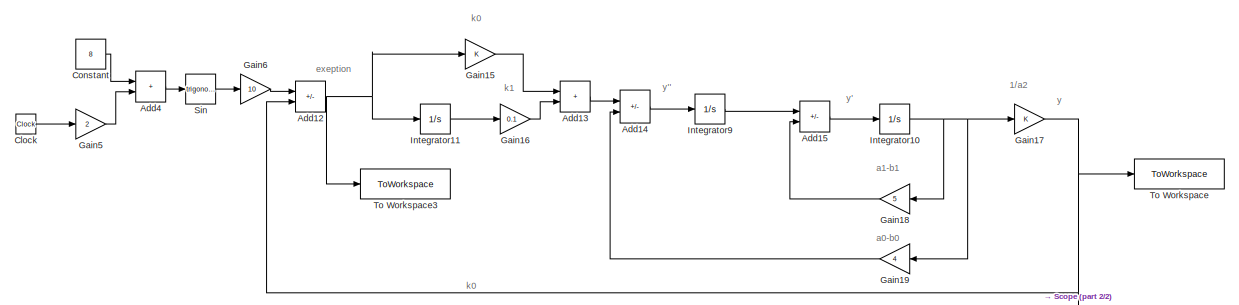
[diagram: root canvas - part 1/2, full width, top band]
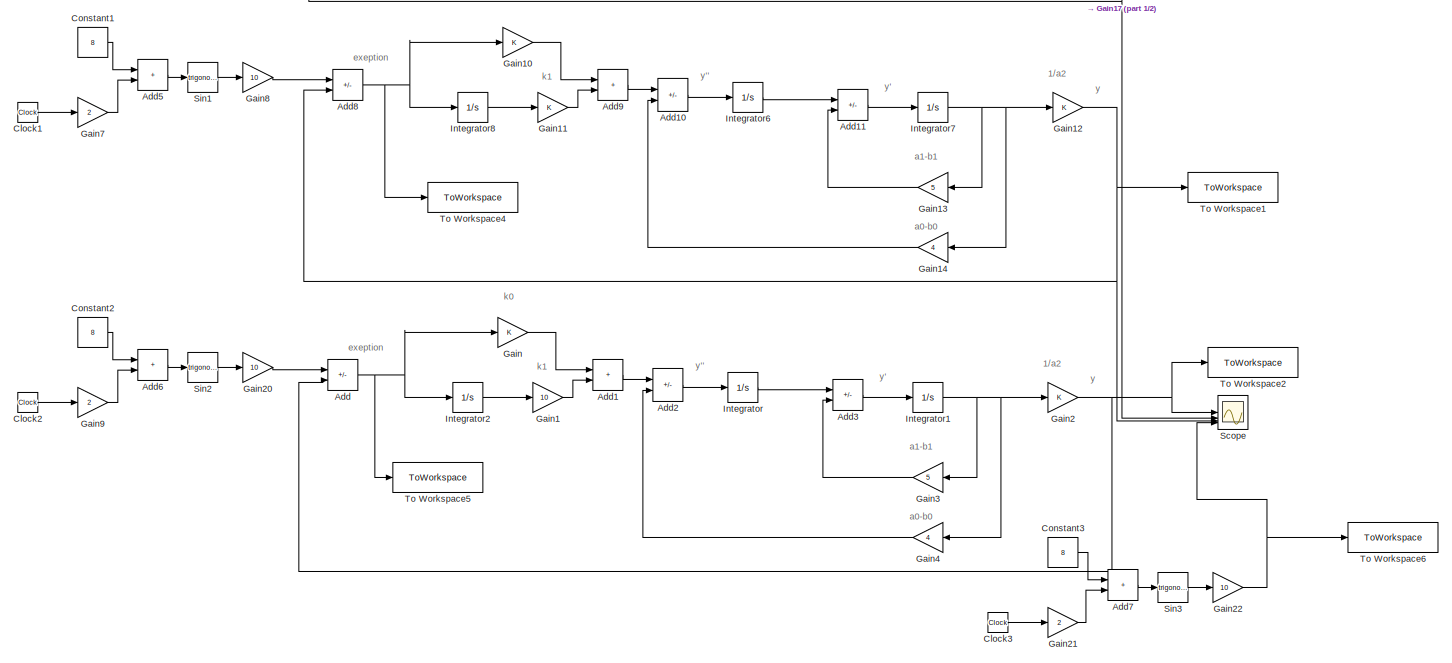
[diagram: root canvas - part 2/2, full width, middle band]
MODEL slx_61120f5c7360
KIND model
CONFIG AbsTol = auto
CONFIG EnableMultiTasking = off
CONFIG FixedStep = 0.01
CONFIG MaxStep = auto
CONFIG MinStep = auto
CONFIG RelTol = 1e-3
CONFIG SampleTimeConstraint = Unconstrained
CONFIG SolverName = FixedStepAuto
CONFIG StartTime = 0.0
CONFIG StopTime = 10
BLOCK [Sum] Add
  IconShape = rectangular
  Inputs = +-
BLOCK [Sum] Add1
  IconShape = rectangular
BLOCK [Sum] Add10
  IconShape = rectangular
  Inputs = +-
BLOCK [Sum] Add11
  IconShape = rectangular
  Inputs = +-
BLOCK [Sum] Add12
  IconShape = rectangular
  Inputs = +-
BLOCK [Sum] Add13
  IconShape = rectangular
BLOCK [Sum] Add14
  IconShape = rectangular
  Inputs = +-
BLOCK [Sum] Add15
  IconShape = rectangular
  Inputs = +-
BLOCK [Sum] Add2
  IconShape = rectangular
  Inputs = +-
BLOCK [Sum] Add3
  IconShape = rectangular
  Inputs = +-
BLOCK [Sum] Add4
  IconShape = rectangular
BLOCK [Sum] Add5
  IconShape = rectangular
BLOCK [Sum] Add6
  IconShape = rectangular
BLOCK [Sum] Add7
  IconShape = rectangular
BLOCK [Sum] Add8
  IconShape = rectangular
  Inputs = +-
BLOCK [Sum] Add9
  IconShape = rectangular
BLOCK [Clock] Clock
BLOCK [Clock] Clock1
BLOCK [Clock] Clock2
BLOCK [Clock] Clock3
BLOCK [Constant] Constant
  Value = 8
BLOCK [Constant] Constant1
  Value = 8
BLOCK [Constant] Constant2
  Value = 8
BLOCK [Constant] Constant3
  Value = 8
BLOCK [Gain] Gain
BLOCK [Gain] Gain1
  Gain = 10
BLOCK [Gain] Gain10
BLOCK [Gain] Gain11
BLOCK [Gain] Gain12
BLOCK [Gain] Gain13
  Gain = 5
  NameLocation = top
BLOCK [Gain] Gain14
  Gain = 4
  NameLocation = top
BLOCK [Gain] Gain15
BLOCK [Gain] Gain16
  Gain = 0.1
BLOCK [Gain] Gain17
BLOCK [Gain] Gain18
  Gain = 5
  NameLocation = top
BLOCK [Gain] Gain19
  Gain = 4
  NameLocation = top
BLOCK [Gain] Gain2
BLOCK [Gain] Gain20
  Gain = 10
BLOCK [Gain] Gain21
  Gain = 2
BLOCK [Gain] Gain22
  Gain = 10
BLOCK [Gain] Gain3
  Gain = 5
  NameLocation = top
BLOCK [Gain] Gain4
  Gain = 4
  NameLocation = top
BLOCK [Gain] Gain5
  Gain = 2
BLOCK [Gain] Gain6
  Gain = 10
BLOCK [Gain] Gain7
  Gain = 2
BLOCK [Gain] Gain8
  Gain = 10
BLOCK [Gain] Gain9
  Gain = 2
BLOCK [Integrator] Integrator
BLOCK [Integrator] Integrator1
BLOCK [Integrator] Integrator10
BLOCK [Integrator] Integrator11
BLOCK [Integrator] Integrator2
BLOCK [Integrator] Integrator6
BLOCK [Integrator] Integrator7
BLOCK [Integrator] Integrator8
BLOCK [Integrator] Integrator9
BLOCK [Scope] Scope
  Floating = off
  NumInputPorts = 4
  ScopeSpecificationString = Simulink.scopes.TimeScopeBlockCfg('CurrentConfiguration', extmgr.ConfigurationSet(extmgr.Configuration('Core','General UI',true),extmgr.Configuration('Core','Source UI',true),extmgr.Configuration('Sources','WiredSimulink',true),extmgr.Configuration('Visuals','Time Domain',true,'SerializedDisplays',{struct('MinYLimReal','-14.88102','MaxYLimReal','14.72798','YLabelReal','','MinYLimMag','0.00000','Ma...<+1447ch>
BLOCK [Trigonometry] Sin
BLOCK [Trigonometry] Sin1
BLOCK [Trigonometry] Sin2
BLOCK [Trigonometry] Sin3
BLOCK [ToWorkspace] To Workspace
  FixptAsFi = on
  MaxDataPoints = inf
  SampleTime = -1
  SaveFormat = Timeseries
  VariableName = simout
BLOCK [ToWorkspace] To Workspace1
  FixptAsFi = on
  MaxDataPoints = inf
  SampleTime = -1
  SaveFormat = Timeseries
  VariableName = simout2
BLOCK [ToWorkspace] To Workspace2
  FixptAsFi = on
  MaxDataPoints = inf
  SampleTime = -1
  SaveFormat = Timeseries
  VariableName = simout4
BLOCK [ToWorkspace] To Workspace3
  FixptAsFi = on
  MaxDataPoints = inf
  SampleTime = -1
  SaveFormat = Timeseries
  VariableName = simout1
BLOCK [ToWorkspace] To Workspace4
  FixptAsFi = on
  MaxDataPoints = inf
  SampleTime = -1
  SaveFormat = Timeseries
  VariableName = simout3
BLOCK [ToWorkspace] To Workspace5
  FixptAsFi = on
  MaxDataPoints = inf
  SampleTime = -1
  SaveFormat = Timeseries
  VariableName = simout5
BLOCK [ToWorkspace] To Workspace6
  FixptAsFi = on
  MaxDataPoints = inf
  SampleTime = -1
  SaveFormat = Timeseries
  VariableName = simout6
ANNOTATION (root): 1/a2
ANNOTATION (root): a0-b0
ANNOTATION (root): a1-b1
ANNOTATION (root): exeption
ANNOTATION (root): k0
ANNOTATION (root): k1
ANNOTATION (root): y
ANNOTATION (root): y'
ANNOTATION (root): y''
LINE Add10:1 -> Integrator6:1
LINE Add11:1 -> Integrator7:1
NET Add12:1 -> Gain15:1, Integrator11:1, To Workspace3:1
LINE Add13:1 -> Add14:1
LINE Add14:1 -> Integrator9:1
LINE Add15:1 -> Integrator10:1
LINE Add1:1 -> Add2:1
LINE Add2:1 -> Integrator:1
LINE Add3:1 -> Integrator1:1
LINE Add4:1 -> Sin:1
LINE Add5:1 -> Sin1:1
LINE Add6:1 -> Sin2:1
LINE Add7:1 -> Sin3:1
NET Add8:1 -> Gain10:1, Integrator8:1, To Workspace4:1
LINE Add9:1 -> Add10:1
NET Add:1 -> Gain:1, Integrator2:1, To Workspace5:1
LINE Clock1:1 -> Gain7:1
LINE Clock2:1 -> Gain9:1
LINE Clock3:1 -> Gain21:1
LINE Clock:1 -> Gain5:1
LINE Constant1:1 -> Add5:1
LINE Constant2:1 -> Add6:1
LINE Constant3:1 -> Add7:1
LINE Constant:1 -> Add4:1
LINE Gain10:1 -> Add9:1
LINE Gain11:1 -> Add9:2
NET Gain12:1 -> Add8:2, Scope:3, To Workspace1:1
LINE Gain13:1 -> Add11:2
LINE Gain14:1 -> Add10:2
LINE Gain15:1 -> Add13:1
LINE Gain16:1 -> Add13:2
NET Gain17:1 -> Add12:2, Scope:2, To Workspace:1
LINE Gain18:1 -> Add15:2
LINE Gain19:1 -> Add14:2
LINE Gain1:1 -> Add1:2
LINE Gain20:1 -> Add:1
LINE Gain21:1 -> Add7:2
NET Gain22:1 -> Scope:4, To Workspace6:1
NET Gain2:1 -> Add:2, Scope:1, To Workspace2:1
LINE Gain3:1 -> Add3:2
LINE Gain4:1 -> Add2:2
LINE Gain5:1 -> Add4:2
LINE Gain6:1 -> Add12:1
LINE Gain7:1 -> Add5:2
LINE Gain8:1 -> Add8:1
LINE Gain9:1 -> Add6:2
LINE Gain:1 -> Add1:1
NET Integrator10:1 -> Gain17:1, Gain18:1, Gain19:1
LINE Integrator11:1 -> Gain16:1
NET Integrator1:1 -> Gain2:1, Gain3:1, Gain4:1
LINE Integrator2:1 -> Gain1:1
LINE Integrator6:1 -> Add11:1
NET Integrator7:1 -> Gain12:1, Gain13:1, Gain14:1
LINE Integrator8:1 -> Gain11:1
LINE Integrator9:1 -> Add15:1
LINE Integrator:1 -> Add3:1
LINE Sin1:1 -> Gain8:1
LINE Sin2:1 -> Gain20:1
LINE Sin3:1 -> Gain22:1
LINE Sin:1 -> Gain6:1
note: NET lines group one-source signal fan-out (src -> all destinations, sorted); 1:1 wires keep LINE
